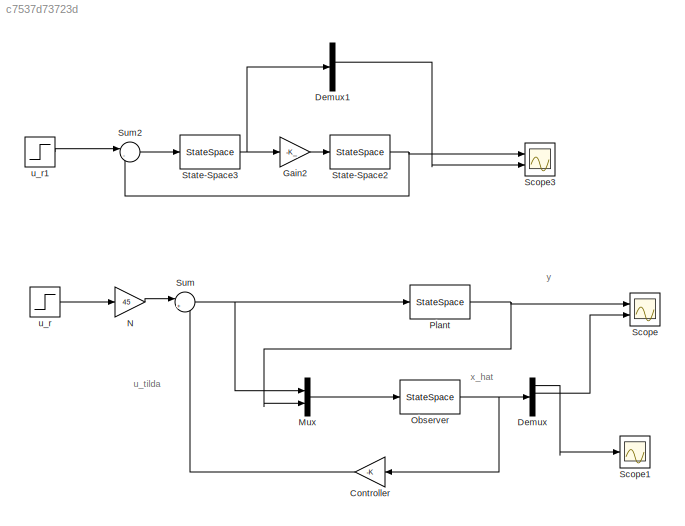
MODEL slx_c7537d73723d
KIND model
CONFIG AbsTol = auto
CONFIG EnableMultiTasking = off
CONFIG FixedStep = auto
CONFIG MaxStep = auto
CONFIG MinStep = auto
CONFIG RelTol = 1e-6
CONFIG SampleTimeConstraint = Unconstrained
CONFIG SolverName = VariableStepAuto
CONFIG StartTime = 0.0
CONFIG StopTime = 20
BLOCK [Gain] Controller
  Gain = -K
  Multiplication = Matrix(K*u)
  NameLocation = top
BLOCK [Demux] Demux
  Ports = [1, 4]
BLOCK [Demux] Demux1
  Ports = [1, 4]
BLOCK [Gain] Gain2
  Gain = -K_
  Multiplication = Matrix(K*u)
BLOCK [Mux] Mux
  DisplayOption = bar
  Inputs = 2
  Ports = [2, 1]
BLOCK [Gain] N
  Gain = 45
BLOCK [StateSpace] Observer
  A = A - L*C
  B = [B L]
  C = eye(4)
  D = zeros(4,2)
  InitialCondition = 0
  Ports = [1, 1]
BLOCK [StateSpace] Plant
  A = A
  B = B
  C = C
  ContinuousStateAttributes = 'state'
  D = 0
  InitialCondition = x0
  Ports = [1, 1]
BLOCK [Scope] Scope
  Floating = off
  NumInputPorts = 2
  Ports = [2]
  ScopeSpecificationString = Simulink.scopes.TimeScopeBlockCfg('CurrentConfiguration', extmgr.ConfigurationSet(extmgr.Configuration('Core','General UI',true),extmgr.Configuration('Core','Source UI',true),extmgr.Configuration('Sources','WiredSimulink',true),extmgr.Configuration('Visuals','Time Domain',true,'SerializedDisplays',{struct('MinYLimReal','-0.27859','MaxYLimReal','1.19164','YLabelReal','','MinYLimMag','0.00000','MaxY...<+1364ch>
BLOCK [Scope] Scope1
  Floating = off
  NumInputPorts = 1
  Ports = [1]
  ScopeSpecificationString = Simulink.scopes.TimeScopeBlockCfg('CurrentConfiguration', extmgr.ConfigurationSet(extmgr.Configuration('Core','General UI',true),extmgr.Configuration('Core','Source UI',true),extmgr.Configuration('Sources','WiredSimulink',true,'DataLoggingVariableName','ScopeData1'),extmgr.Configuration('Visuals','Time Domain',true,'SerializedDisplays',{struct('MinYLimReal','-0.9823','MaxYLimReal','1.44518','YLabe...<+1429ch>
BLOCK [Scope] Scope3
  Floating = off
  NumInputPorts = 2
  Ports = [2]
  ScopeSpecificationString = Simulink.scopes.TimeScopeBlockCfg('CurrentConfiguration', extmgr.ConfigurationSet(extmgr.Configuration('Core','General UI',true),extmgr.Configuration('Core','Source UI',true),extmgr.Configuration('Sources','WiredSimulink',true,'DataLoggingVariableName','ScopeData3'),extmgr.Configuration('Visuals','Time Domain',true,'SerializedDisplays',{struct('MinYLimReal','-1.63783','MaxYLimReal','1.85578','YLab...<+1411ch>
BLOCK [StateSpace] State-Space2
  A = A
  B = B
  C = C
  ContinuousStateAttributes = 'state2'
  D = 0
  InitialCondition = x0
  Ports = [1, 1]
BLOCK [StateSpace] State-Space3
  A = A - B*K_ - L*C
  B = L
  C = eye(4)
  D = zeros(4,1)
  InitialCondition = 0
  Ports = [1, 1]
BLOCK [Sum] Sum
  Inputs = |++
  Ports = [2, 1]
BLOCK [Sum] Sum2
  Inputs = |-+
  Ports = [2, 1]
BLOCK [Step] u_r
  SampleTime = 0
BLOCK [Step] u_r1
  SampleTime = 0
ANNOTATION (root): u_tilda
ANNOTATION (root): x_hat
ANNOTATION (root): y
LINE Controller:1 -> Sum:2
LINE Demux1:2 -> Scope3:2
LINE Demux:1 -> Scope1:1
LINE Demux:2 -> Scope:2
LINE Gain2:1 -> State-Space2:1
LINE Mux:1 -> Observer:1
LINE N:1 -> Sum:1
NET Observer:1 -> Controller:1, Demux:1
NET Plant:1 -> Mux:2, Scope:1
NET State-Space2:1 -> Scope3:1, Sum2:2
NET State-Space3:1 -> Demux1:1, Gain2:1
LINE Sum2:1 -> State-Space3:1
NET Sum:1 -> Mux:1, Plant:1
LINE u_r1:1 -> Sum2:1
LINE u_r:1 -> N:1
note: NET lines group one-source signal fan-out (src -> all destinations, sorted); 1:1 wires keep LINE
